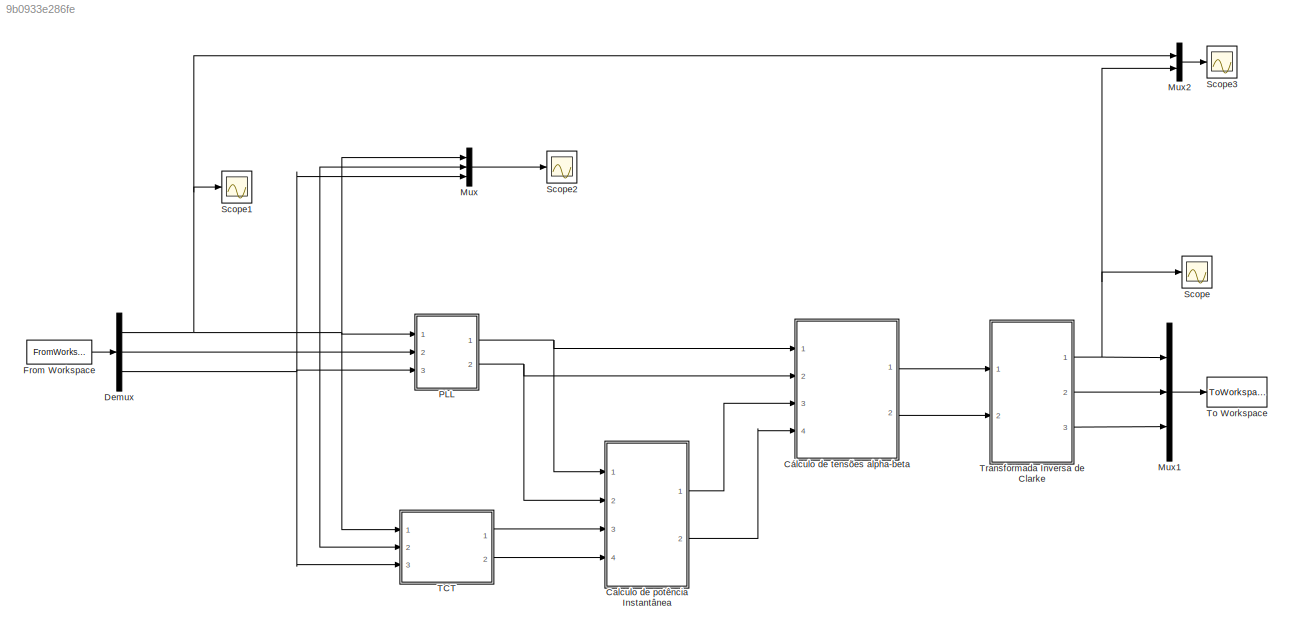
MODEL slx_9b0933e286fe
KIND model
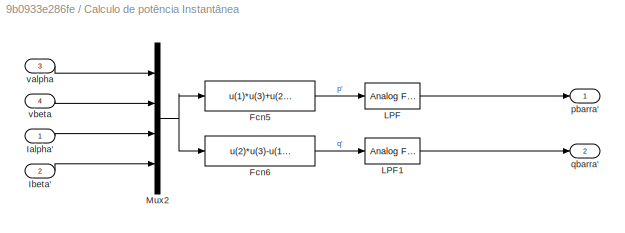
BLOCK [SubSystem] Calculo de potência Instantânea
  Ports = [4, 2]
  RequestExecContextInheritance = off
BLOCK [Fcn] Calculo de potência Instantânea/Fcn5
  Expr = u(1)*u(3)+u(2)*u(4)
BLOCK [Fcn] Calculo de potência Instantânea/Fcn6
  Expr = u(2)*u(3)-u(1)*u(4)
BLOCK [Inport] Calculo de potência Instantânea/Ialpha'
  IconDisplay = Port number
BLOCK [Inport] Calculo de potência Instantânea/Ibeta'
  IconDisplay = Port number
  Port = 2
BLOCK [Reference] Calculo de potência Instantânea/LPF  REF=dsparch4/Analog
Filter Design
  N = 5
  Ports = [1, 1]
  Rp = 2
  Rs = 40
  SourceBlock = dsparch4/Analog\nFilter Design
  SourceType = Analog Filter Design
  Whi = 80
  Wlo = 2*pi*200
  filttype = Lowpass
  method = Butterworth
BLOCK [Reference] Calculo de potência Instantânea/LPF1  REF=dsparch4/Analog
Filter Design
  N = 5
  Ports = [1, 1]
  Rp = 2
  Rs = 40
  SourceBlock = dsparch4/Analog\nFilter Design
  SourceType = Analog Filter Design
  Whi = 80
  Wlo = 2*pi*200
  filttype = Lowpass
  method = Butterworth
BLOCK [Mux] Calculo de potência Instantânea/Mux2
  DisplayOption = bar
  Ports = [4, 1]
BLOCK [Outport] Calculo de potência Instantânea/pbarra'
  IconDisplay = Port number
BLOCK [Outport] Calculo de potência Instantânea/qbarra'
  IconDisplay = Port number
  Port = 2
BLOCK [Inport] Calculo de potência Instantânea/valpha
  IconDisplay = Port number
  Port = 3
BLOCK [Inport] Calculo de potência Instantânea/vbeta
  IconDisplay = Port number
  Port = 4
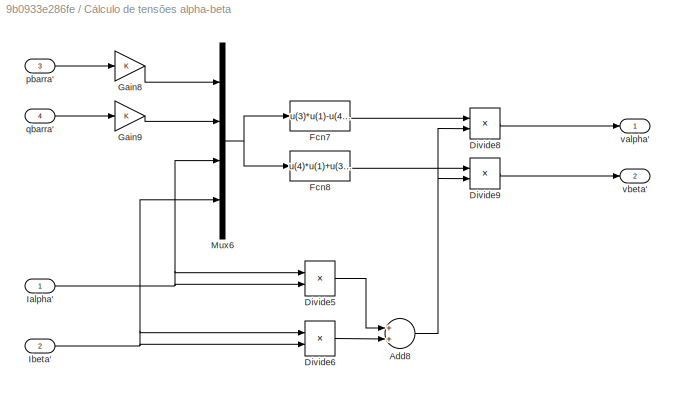
BLOCK [SubSystem] Cálculo de tensões alpha-beta
  Ports = [4, 2]
  RequestExecContextInheritance = off
BLOCK [Sum] Cálculo de tensões alpha-beta/Add8
  InputSameDT = off
  OutDataTypeStr = Inherit: Inherit via internal rule
  Ports = [2, 1]
  SaturateOnIntegerOverflow = off
BLOCK [Product] Cálculo de tensões alpha-beta/Divide5
  InputSameDT = off
  Inputs = **
  OutDataTypeStr = Inherit: Inherit via internal rule
  Ports = [2, 1]
  RndMeth = Floor
  SaturateOnIntegerOverflow = off
BLOCK [Product] Cálculo de tensões alpha-beta/Divide6
  InputSameDT = off
  Inputs = **
  OutDataTypeStr = Inherit: Inherit via internal rule
  Ports = [2, 1]
  RndMeth = Floor
  SaturateOnIntegerOverflow = off
BLOCK [Product] Cálculo de tensões alpha-beta/Divide8
  InputSameDT = off
  Inputs = */
  OutDataTypeStr = Inherit: Inherit via internal rule
  Ports = [2, 1]
  RndMeth = Floor
  SaturateOnIntegerOverflow = off
BLOCK [Product] Cálculo de tensões alpha-beta/Divide9
  InputSameDT = off
  Inputs = */
  OutDataTypeStr = Inherit: Inherit via internal rule
  Ports = [2, 1]
  RndMeth = Floor
  SaturateOnIntegerOverflow = off
BLOCK [Fcn] Cálculo de tensões alpha-beta/Fcn7
  Expr = u(3)*u(1)-u(4)*u(2)
BLOCK [Fcn] Cálculo de tensões alpha-beta/Fcn8
  Expr = u(4)*u(1)+u(3)*u(2)
BLOCK [Gain] Cálculo de tensões alpha-beta/Gain8
  OutDataTypeStr = Inherit: Inherit via internal rule
  ParamDataTypeStr = Inherit: Inherit via internal rule
  SaturateOnIntegerOverflow = off
BLOCK [Gain] Cálculo de tensões alpha-beta/Gain9
  OutDataTypeStr = Inherit: Inherit via internal rule
  ParamDataTypeStr = Inherit: Inherit via internal rule
  SaturateOnIntegerOverflow = off
BLOCK [Inport] Cálculo de tensões alpha-beta/Ialpha'
  IconDisplay = Port number
BLOCK [Inport] Cálculo de tensões alpha-beta/Ibeta'
  IconDisplay = Port number
  Port = 2
BLOCK [Mux] Cálculo de tensões alpha-beta/Mux6
  DisplayOption = bar
  Ports = [4, 1]
BLOCK [Inport] Cálculo de tensões alpha-beta/pbarra'
  IconDisplay = Port number
  Port = 3
BLOCK [Inport] Cálculo de tensões alpha-beta/qbarra'
  IconDisplay = Port number
  Port = 4
BLOCK [Outport] Cálculo de tensões alpha-beta/valpha'
  IconDisplay = Port number
BLOCK [Outport] Cálculo de tensões alpha-beta/vbeta'
  IconDisplay = Port number
  Port = 2
BLOCK [Demux] Demux
  DisplayOption = bar
  Outputs = 3
  Ports = [1, 3]
BLOCK [FromWorkspace] From Workspace
  SampleTime = 0
  VariableName = y
  ZeroCross = on
BLOCK [Mux] Mux
  DisplayOption = bar
  Inputs = 3
  Ports = [3, 1]
BLOCK [Mux] Mux1
  DisplayOption = bar
  Inputs = 3
  Ports = [3, 1]
BLOCK [Mux] Mux2
  DisplayOption = bar
  Inputs = 2
  Ports = [2, 1]
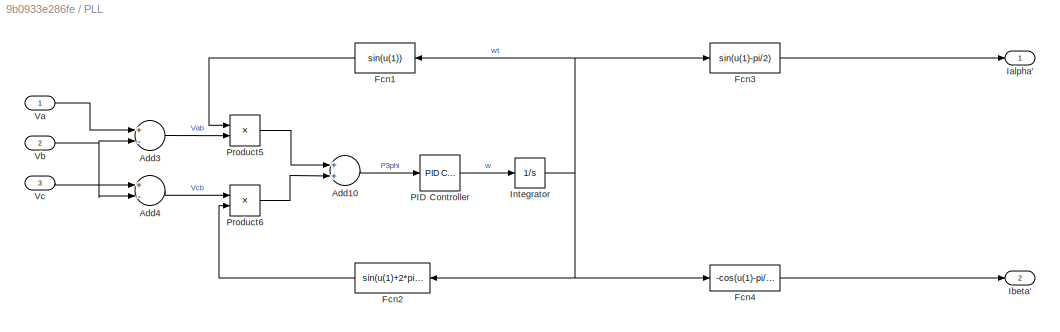
BLOCK [SubSystem] PLL
  Ports = [3, 2]
  RequestExecContextInheritance = off
BLOCK [Sum] PLL/Add10
  InputSameDT = off
  OutDataTypeStr = Inherit: Inherit via internal rule
  Ports = [2, 1]
  SaturateOnIntegerOverflow = off
BLOCK [Sum] PLL/Add3
  InputSameDT = off
  Inputs = +-
  OutDataTypeStr = Inherit: Inherit via internal rule
  Ports = [2, 1]
  SaturateOnIntegerOverflow = off
BLOCK [Sum] PLL/Add4
  InputSameDT = off
  Inputs = +-
  OutDataTypeStr = Inherit: Inherit via internal rule
  Ports = [2, 1]
  SaturateOnIntegerOverflow = off
BLOCK [Fcn] PLL/Fcn1
  Expr = sin(u(1))
BLOCK [Fcn] PLL/Fcn2
  Expr = sin(u(1)+2*pi/3)
BLOCK [Fcn] PLL/Fcn3
  Expr = sin(u(1)-pi/2)
BLOCK [Fcn] PLL/Fcn4
  Expr = -cos(u(1)-pi/2)
BLOCK [Outport] PLL/Ialpha'
  IconDisplay = Port number
BLOCK [Outport] PLL/Ibeta'
  IconDisplay = Port number
  Port = 2
BLOCK [Integrator] PLL/Integrator
  Ports = [1, 1]
BLOCK [Reference] PLL/PID Controller  REF=simulink/Continuous/PID Controller
  AntiWindupMode = none
  Controller = PI
  D = 0
  DOutDataTypeStr = Inherit: Inherit via internal rule
  DOutMax = []
  DOutMin = []
  DParamDataTypeStr = Inherit: Inherit via internal rule
  DParamMax = []
  DParamMin = []
  DifferentiatorICPrevScaledInput = 0
  DifferentiatorOutDataTypeStr = Inherit: Inherit via internal rule
  DifferentiatorOutMax = []
  DifferentiatorOutMin = []
  ExternalReset = none
  FilterContinuousStateAttributes = ''
  FilterMethod = Forward Euler
  FilterOutDataTypeStr = Inherit: Inherit via internal rule
  FilterOutMax = []
  FilterOutMin = []
  FilterRTWStateStorageClass = Auto
  FilterStateMustResolveToSignalObject = off
  Form = Parallel
  I = 20
  IOutDataTypeStr = Inherit: Inherit via internal rule
  IOutMax = []
  IOutMin = []
  IParamDataTypeStr = Inherit: Inherit via internal rule
  IParamMax = []
  IParamMin = []
  IgnoreLimit = off
  InitialConditionForFilter = 0
  InitialConditionForIntegrator = 0
  InitialConditionSource = internal
  IntegratorContinuousStateAttributes = ''
  IntegratorMethod = Forward Euler
  IntegratorOutDataTypeStr = Inherit: Inherit via internal rule
  IntegratorOutMax = []
  IntegratorOutMin = []
  IntegratorRTWStateStorageClass = Auto
  IntegratorStateMustResolveToSignalObject = off
  Kb = 1
  KbOutDataTypeStr = Inherit: Inherit via internal rule
  KbOutMax = []
  KbOutMin = []
  KbParamDataTypeStr = Inherit: Inherit via internal rule
  KbParamMax = []
  KbParamMin = []
  Kt = 1
  KtOutDataTypeStr = Inherit: Inherit via internal rule
  KtOutMax = []
  KtOutMin = []
  KtParamDataTypeStr = Inherit: Inherit via internal rule
  KtParamMax = []
  KtParamMin = []
  LimitOutput = off
  LinearizeAsGain = on
  LockScale = off
  LowerSaturationLimit = -inf
  N = 100
  NOutDataTypeStr = Inherit: Inherit via internal rule
  NOutMax = []
  NOutMin = []
  NParamDataTypeStr = Inherit: Inherit via internal rule
  NParamMax = []
  NParamMin = []
  P = 11
  POutDataTypeStr = Inherit: Inherit via internal rule
  POutMax = []
  POutMin = []
  PParamDataTypeStr = Inherit: Inherit via internal rule
  PParamMax = []
  PParamMin = []
  Ports = [1, 1]
  RndMeth = Floor
  SampleTime = -1
  SaturateOnIntegerOverflow = off
  SaturationOutDataTypeStr = Inherit: Same as input
  SaturationOutMax = []
  SaturationOutMin = []
  SourceBlock = simulink/Continuous/PID Controller
  SourceType = PID 1dof
  SumAccumDataTypeStr = Inherit: Inherit via internal rule
  SumDAccumDataTypeStr = Inherit: Inherit via internal rule
  SumDOutDataTypeStr = Inherit: Inherit via internal rule
  SumDOutMax = []
  SumDOutMin = []
  SumI1AccumDataTypeStr = Inherit: Inherit via internal rule
  SumI1OutDataTypeStr = Inherit: Inherit via internal rule
  SumI1OutMax = []
  SumI1OutMin = []
  SumI2AccumDataTypeStr = Inherit: Inherit via internal rule
  SumI2OutDataTypeStr = Inherit: Inherit via internal rule
  SumI2OutMax = []
  SumI2OutMin = []
  SumI3AccumDataTypeStr = Inherit: Inherit via internal rule
  SumI3OutDataTypeStr = Inherit: Inherit via internal rule
  SumI3OutMax = []
  SumI3OutMin = []
  SumOutDataTypeStr = Inherit: Inherit via internal rule
  SumOutMax = []
  SumOutMin = []
  TimeDomain = Continuous-time
  TrackingMode = off
  UpperSaturationLimit = inf
  UseFilter = on
  ZeroCross = on
BLOCK [Product] PLL/Product5
  InputSameDT = off
  OutDataTypeStr = Inherit: Inherit via internal rule
  Ports = [2, 1]
  RndMeth = Floor
  SaturateOnIntegerOverflow = off
BLOCK [Product] PLL/Product6
  InputSameDT = off
  OutDataTypeStr = Inherit: Inherit via internal rule
  Ports = [2, 1]
  RndMeth = Floor
  SaturateOnIntegerOverflow = off
BLOCK [Inport] PLL/Va
  IconDisplay = Port number
BLOCK [Inport] PLL/Vb
  IconDisplay = Port number
  Port = 2
BLOCK [Inport] PLL/Vc
  IconDisplay = Port number
  Port = 3
BLOCK [Scope] Scope
  Floating = off
  LimitDataPoints = off
  NumInputPorts = 1
  Ports = [1]
  ShowLegends = off
  YMax = 900000
  YMin = -100000
  ZoomMode = xonly
BLOCK [Scope] Scope1
  Floating = off
  LimitDataPoints = off
  NumInputPorts = 1
  Ports = [1]
  SaveName = ScopeData1
  ShowLegends = off
BLOCK [Scope] Scope2
  Floating = off
  LimitDataPoints = off
  NumInputPorts = 1
  Ports = [1]
  SaveName = ScopeData2
  ShowLegends = off
  YMax = 450000
  YMin = -50000
  ZoomMode = xonly
BLOCK [Scope] Scope3
  Floating = off
  LimitDataPoints = off
  NumInputPorts = 1
  Ports = [1]
  SaveName = ScopeData3
  ShowLegends = off
  ZoomMode = xonly
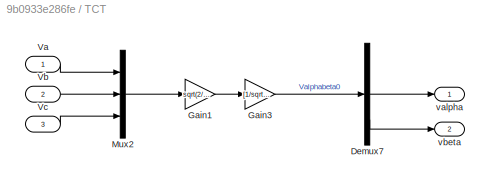
BLOCK [SubSystem] TCT
  Ports = [3, 2]
  RequestExecContextInheritance = off
BLOCK [Demux] TCT/Demux7
  DisplayOption = bar
  Outputs = 3
  Ports = [1, 3]
BLOCK [Gain] TCT/Gain1
  Gain = sqrt(2/3)
  OutDataTypeStr = Inherit: Inherit via internal rule
  ParamDataTypeStr = Inherit: Inherit via internal rule
  SaturateOnIntegerOverflow = off
BLOCK [Gain] TCT/Gain3
  Gain = [1/sqrt(2), 1/sqrt(2), 1/sqrt(2); 1, -1/2, -1/2; 0, sqrt(3)/2, -sqrt(3)/2]
  Multiplication = Matrix(K*u)
  OutDataTypeStr = Inherit: Inherit via internal rule
  ParamDataTypeStr = Inherit: Inherit via internal rule
  SaturateOnIntegerOverflow = off
BLOCK [Mux] TCT/Mux2
  DisplayOption = bar
  Inputs = 3
  Ports = [3, 1]
BLOCK [Inport] TCT/Va
  IconDisplay = Port number
BLOCK [Inport] TCT/Vb
  IconDisplay = Port number
  Port = 2
BLOCK [Inport] TCT/Vc
  IconDisplay = Port number
  Port = 3
BLOCK [Outport] TCT/valpha
  IconDisplay = Port number
BLOCK [Outport] TCT/vbeta
  IconDisplay = Port number
  Port = 2
BLOCK [ToWorkspace] To Workspace
  FixptAsFi = on
  MaxDataPoints = inf
  Ports = [1]
  SampleTime = -1
  Save2DSignal = 3-D array (concatenate along third dimension)
  SaveFormat = Structure With Time
  VariableName = Vlinha
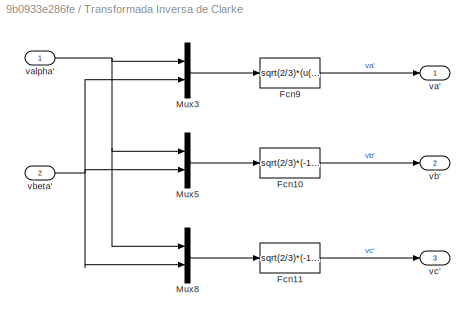
BLOCK [SubSystem] Transformada Inversa de Clarke
  Ports = [2, 3]
  RequestExecContextInheritance = off
BLOCK [Fcn] Transformada Inversa de Clarke/Fcn10
  Expr = sqrt(2/3)*(-1/2*u(1)+sqrt(3)/2*u(2))
BLOCK [Fcn] Transformada Inversa de Clarke/Fcn11
  Expr = sqrt(2/3)*(-1/2*u(1)-sqrt(3)/2*u(2))
BLOCK [Fcn] Transformada Inversa de Clarke/Fcn9
  Expr = sqrt(2/3)*(u(1) + 0*u(2))
BLOCK [Mux] Transformada Inversa de Clarke/Mux3
  DisplayOption = bar
  Inputs = 2
  Ports = [2, 1]
BLOCK [Mux] Transformada Inversa de Clarke/Mux5
  DisplayOption = bar
  Inputs = 2
  Ports = [2, 1]
BLOCK [Mux] Transformada Inversa de Clarke/Mux8
  DisplayOption = bar
  Inputs = 2
  Ports = [2, 1]
BLOCK [Outport] Transformada Inversa de Clarke/va'
  IconDisplay = Port number
BLOCK [Inport] Transformada Inversa de Clarke/valpha'
  IconDisplay = Port number
BLOCK [Outport] Transformada Inversa de Clarke/vb'
  IconDisplay = Port number
  Port = 2
BLOCK [Inport] Transformada Inversa de Clarke/vbeta'
  IconDisplay = Port number
  Port = 2
BLOCK [Outport] Transformada Inversa de Clarke/vc'
  IconDisplay = Port number
  Port = 3
LINE Calculo de potência Instantânea/Fcn5:1 -> Calculo de potência Instantânea/LPF:1
LINE Calculo de potência Instantânea/Fcn6:1 -> Calculo de potência Instantânea/LPF1:1
LINE Calculo de potência Instantânea/Ialpha':1 -> Calculo de potência Instantânea/Mux2:3
LINE Calculo de potência Instantânea/Ibeta':1 -> Calculo de potência Instantânea/Mux2:4
LINE Calculo de potência Instantânea/LPF1:1 -> Calculo de potência Instantânea/qbarra':1
LINE Calculo de potência Instantânea/LPF:1 -> Calculo de potência Instantânea/pbarra':1
NET Calculo de potência Instantânea/Mux2:1 -> Calculo de potência Instantânea/Fcn5:1, Calculo de potência Instantânea/Fcn6:1
LINE Calculo de potência Instantânea/valpha:1 -> Calculo de potência Instantânea/Mux2:1
LINE Calculo de potência Instantânea/vbeta:1 -> Calculo de potência Instantânea/Mux2:2
LINE Calculo de potência Instantânea:1 -> Cálculo de tensões alpha-beta:3
LINE Calculo de potência Instantânea:2 -> Cálculo de tensões alpha-beta:4
NET Cálculo de tensões alpha-beta/Add8:1 -> Cálculo de tensões alpha-beta/Divide8:2, Cálculo de tensões alpha-beta/Divide9:2
LINE Cálculo de tensões alpha-beta/Divide5:1 -> Cálculo de tensões alpha-beta/Add8:1
LINE Cálculo de tensões alpha-beta/Divide6:1 -> Cálculo de tensões alpha-beta/Add8:2
LINE Cálculo de tensões alpha-beta/Divide8:1 -> Cálculo de tensões alpha-beta/valpha':1
LINE Cálculo de tensões alpha-beta/Divide9:1 -> Cálculo de tensões alpha-beta/vbeta':1
LINE Cálculo de tensões alpha-beta/Fcn7:1 -> Cálculo de tensões alpha-beta/Divide8:1
LINE Cálculo de tensões alpha-beta/Fcn8:1 -> Cálculo de tensões alpha-beta/Divide9:1
LINE Cálculo de tensões alpha-beta/Gain8:1 -> Cálculo de tensões alpha-beta/Mux6:1
LINE Cálculo de tensões alpha-beta/Gain9:1 -> Cálculo de tensões alpha-beta/Mux6:2
NET Cálculo de tensões alpha-beta/Ialpha':1 -> Cálculo de tensões alpha-beta/Divide5:1, Cálculo de tensões alpha-beta/Divide5:2, Cálculo de tensões alpha-beta/Mux6:3
NET Cálculo de tensões alpha-beta/Ibeta':1 -> Cálculo de tensões alpha-beta/Divide6:1, Cálculo de tensões alpha-beta/Divide6:2, Cálculo de tensões alpha-beta/Mux6:4
NET Cálculo de tensões alpha-beta/Mux6:1 -> Cálculo de tensões alpha-beta/Fcn7:1, Cálculo de tensões alpha-beta/Fcn8:1
LINE Cálculo de tensões alpha-beta/pbarra':1 -> Cálculo de tensões alpha-beta/Gain8:1
LINE Cálculo de tensões alpha-beta/qbarra':1 -> Cálculo de tensões alpha-beta/Gain9:1
LINE Cálculo de tensões alpha-beta:1 -> Transformada Inversa de Clarke:1
LINE Cálculo de tensões alpha-beta:2 -> Transformada Inversa de Clarke:2
NET Demux:1 -> Mux2:1, Mux:1, PLL:1, Scope1:1, TCT:1
NET Demux:2 -> Mux:2, PLL:2, TCT:2
NET Demux:3 -> Mux:3, PLL:3, TCT:3
LINE From Workspace:1 -> Demux:1
LINE Mux1:1 -> To Workspace:1
LINE Mux2:1 -> Scope3:1
LINE Mux:1 -> Scope2:1
LINE PLL/Add10:1 -> PLL/PID Controller:1
LINE PLL/Add3:1 -> PLL/Product5:2
LINE PLL/Add4:1 -> PLL/Product6:1
LINE PLL/Fcn1:1 -> PLL/Product5:1
LINE PLL/Fcn2:1 -> PLL/Product6:2
LINE PLL/Fcn3:1 -> PLL/Ialpha':1
LINE PLL/Fcn4:1 -> PLL/Ibeta':1
NET PLL/Integrator:1 -> PLL/Fcn1:1, PLL/Fcn2:1, PLL/Fcn3:1, PLL/Fcn4:1
LINE PLL/PID Controller:1 -> PLL/Integrator:1
LINE PLL/Product5:1 -> PLL/Add10:1
LINE PLL/Product6:1 -> PLL/Add10:2
LINE PLL/Va:1 -> PLL/Add3:1
NET PLL/Vb:1 -> PLL/Add3:2, PLL/Add4:2
LINE PLL/Vc:1 -> PLL/Add4:1
NET PLL:1 -> Calculo de potência Instantânea:1, Cálculo de tensões alpha-beta:1
NET PLL:2 -> Calculo de potência Instantânea:2, Cálculo de tensões alpha-beta:2
LINE TCT/Demux7:2 -> TCT/valpha:1
LINE TCT/Demux7:3 -> TCT/vbeta:1
LINE TCT/Gain1:1 -> TCT/Gain3:1
LINE TCT/Gain3:1 -> TCT/Demux7:1
LINE TCT/Mux2:1 -> TCT/Gain1:1
LINE TCT/Va:1 -> TCT/Mux2:1
LINE TCT/Vb:1 -> TCT/Mux2:2
LINE TCT/Vc:1 -> TCT/Mux2:3
LINE TCT:1 -> Calculo de potência Instantânea:3
LINE TCT:2 -> Calculo de potência Instantânea:4
LINE Transformada Inversa de Clarke/Fcn10:1 -> Transformada Inversa de Clarke/vb':1
LINE Transformada Inversa de Clarke/Fcn11:1 -> Transformada Inversa de Clarke/vc':1
LINE Transformada Inversa de Clarke/Fcn9:1 -> Transformada Inversa de Clarke/va':1
LINE Transformada Inversa de Clarke/Mux3:1 -> Transformada Inversa de Clarke/Fcn9:1
LINE Transformada Inversa de Clarke/Mux5:1 -> Transformada Inversa de Clarke/Fcn10:1
LINE Transformada Inversa de Clarke/Mux8:1 -> Transformada Inversa de Clarke/Fcn11:1
NET Transformada Inversa de Clarke/valpha':1 -> Transformada Inversa de Clarke/Mux3:1, Transformada Inversa de Clarke/Mux5:1, Transformada Inversa de Clarke/Mux8:1
NET Transformada Inversa de Clarke/vbeta':1 -> Transformada Inversa de Clarke/Mux3:2, Transformada Inversa de Clarke/Mux5:2, Transformada Inversa de Clarke/Mux8:2
NET Transformada Inversa de Clarke:1 -> Mux1:1, Mux2:2, Scope:1
LINE Transformada Inversa de Clarke:2 -> Mux1:2
LINE Transformada Inversa de Clarke:3 -> Mux1:3
note: NET lines group one-source signal fan-out (src -> all destinations, sorted); 1:1 wires keep LINE
